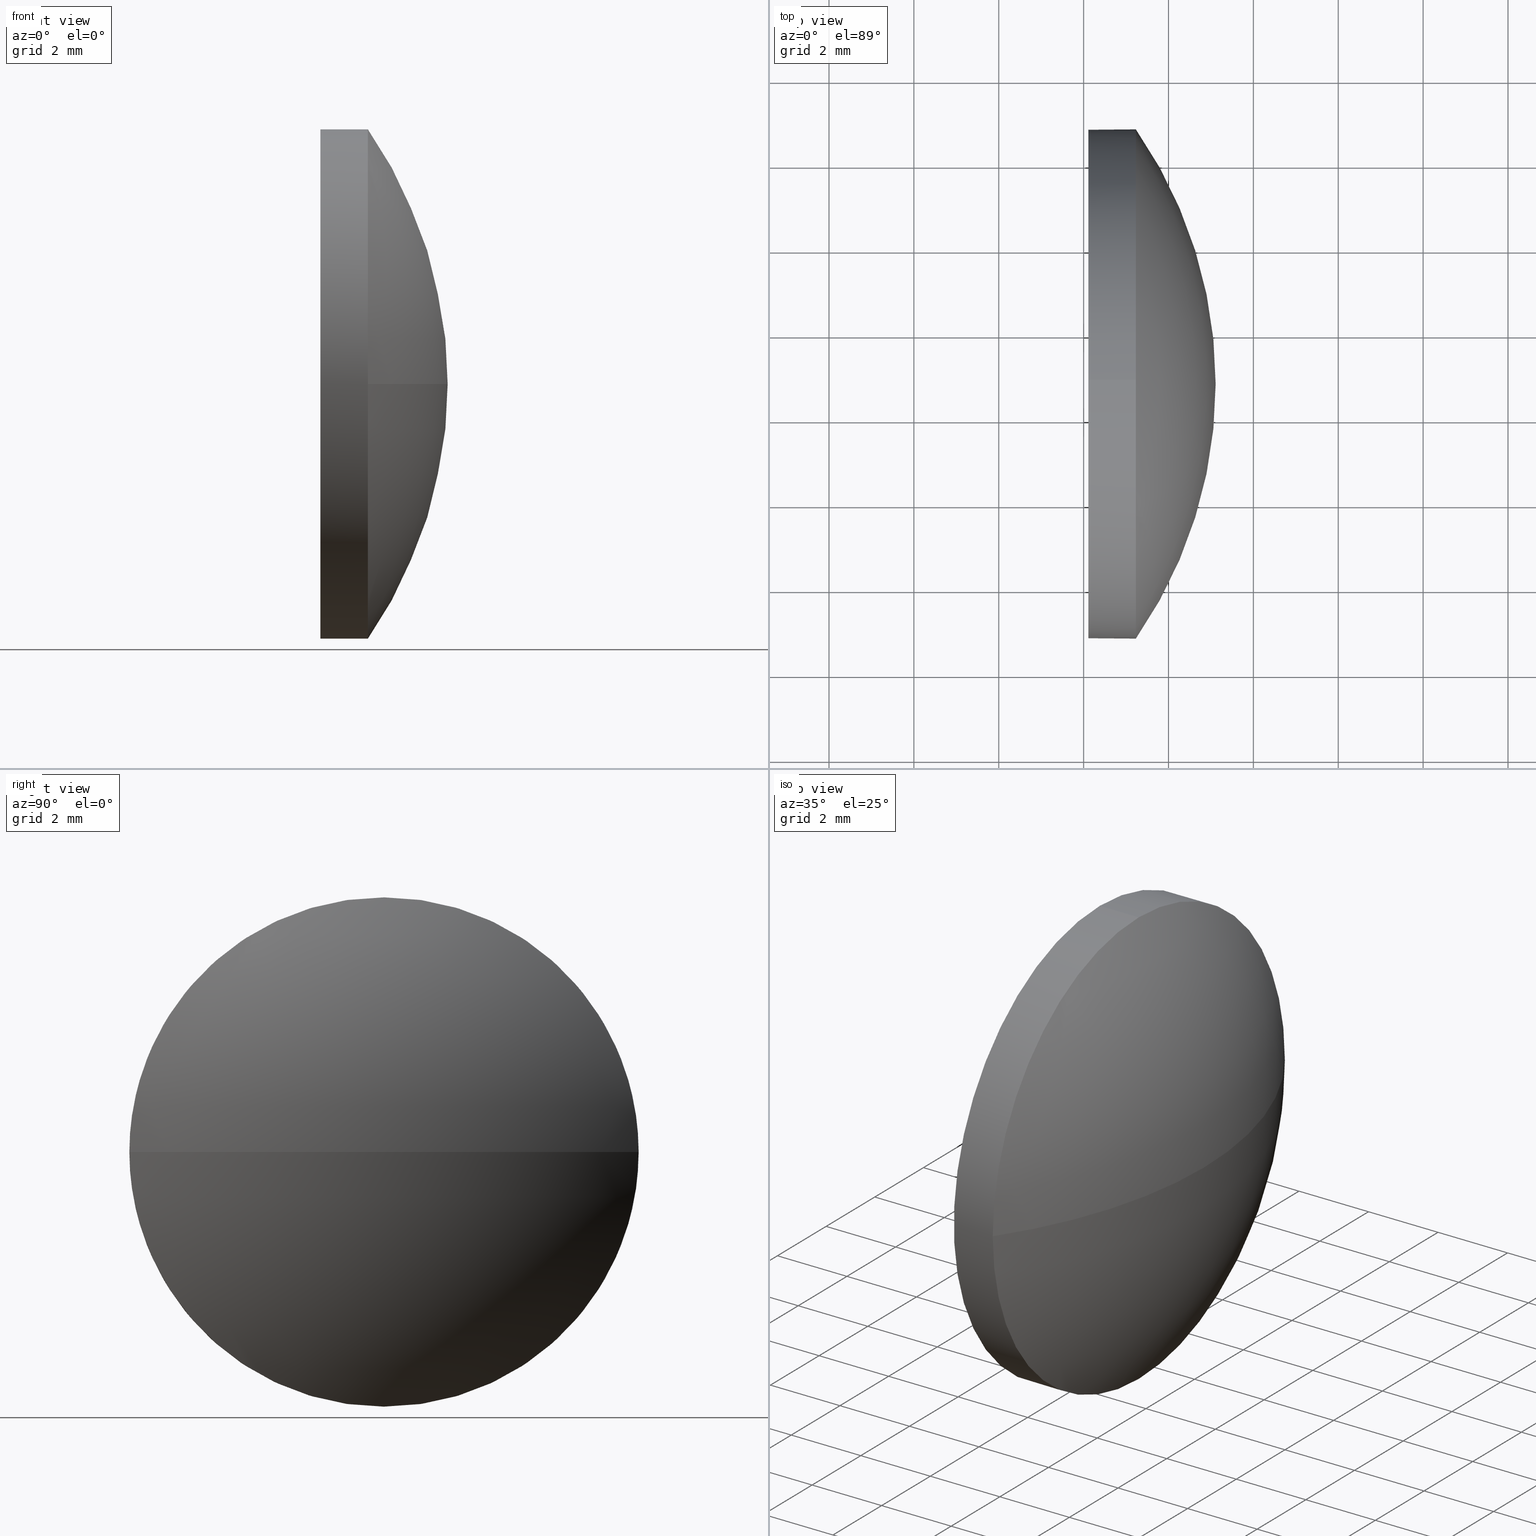
[diagram: canonical four-view strip — front | top / right | iso, engineering-drawing reading convention]
A machine part, canonical four-view strip (front | top / right | iso — engineering-drawing reading convention). The complete STEP part file that produces these views, byte-faithful:
ISO-10303-21;
HEADER;
FILE_DESCRIPTION (( 'STEP AP214' ),
    '1' );
FILE_NAME ('100195.STEP',
    '2019-05-22T03:48:23',
    ( '' ),
    ( '' ),
    'SwSTEP 2.0',
    'SolidWorks 2016',
    '' );
FILE_SCHEMA (( 'AUTOMOTIVE_DESIGN' ));
ENDSEC;

DATA;
#1 = FILL_AREA_STYLE ('',( #19 ) ) ;
#2 = DIRECTION ( 'NONE',  ( 0.0000000000000000000, 0.0000000000000000000, 1.000000000000000000 ) ) ;
#3 = EDGE_LOOP ( 'NONE', ( #133, #54, #10, #145, #49 ) ) ;
#4 = AXIS2_PLACEMENT_3D ( 'NONE', #113, #44, #179 ) ;
#5 = PRODUCT_CONTEXT ( 'NONE', #122, 'mechanical' ) ;
#6 = PRODUCT_DEFINITION_FORMATION_WITH_SPECIFIED_SOURCE ( '�κ�', '', #74, .NOT_KNOWN. ) ;
#7 = FACE_OUTER_BOUND ( 'NONE', #3, .T. ) ;
#8 = PRESENTATION_LAYER_ASSIGNMENT (  '', '', ( #178 ) ) ;
#9 = FACE_OUTER_BOUND ( 'NONE', #52, .T. ) ;
#10 = ORIENTED_EDGE ( 'NONE', *, *, #35, .T. ) ;
#11 = EDGE_CURVE ( 'NONE', #169, #64, #174, .T. ) ;
#12 = ORIENTED_EDGE ( 'NONE', *, *, #148, .T. ) ;
#13 = DIRECTION ( 'NONE',  ( 0.0000000000000000000, 0.0000000000000000000, 1.000000000000000000 ) ) ;
#14 = CARTESIAN_POINT ( 'NONE',  ( 433.2311950534910400, 60.80641332261154000, 0.0000000000000000000 ) ) ;
#15 = DIRECTION ( 'NONE',  ( -0.0000000000000000000, 0.0000000000000000000, -1.000000000000000000 ) ) ;
#16 = CARTESIAN_POINT ( 'NONE',  ( 430.4750955185627400, 54.80641332261154700, 0.0000000000000000000 ) ) ;
#17 = PRODUCT_RELATED_PRODUCT_CATEGORY ( 'part', '', ( #74 ) ) ;
#18 = CIRCLE ( 'NONE', #67, 5.999999999999998200 ) ;
#19 = FILL_AREA_STYLE_COLOUR ( '', #108 ) ;
#20 = CARTESIAN_POINT ( 'NONE',  ( 424.5967269683846400, 54.80641332261151900, 0.0000000000000000000 ) ) ;
#21 = AXIS2_PLACEMENT_3D ( 'NONE', #115, #166, #82 ) ;
#22 = CIRCLE ( 'NONE', #165, 5.999999999999998200 ) ;
#23 = ORIENTED_EDGE ( 'NONE', *, *, #137, .F. ) ;
#24 =( GEOMETRIC_REPRESENTATION_CONTEXT ( 3 ) GLOBAL_UNCERTAINTY_ASSIGNED_CONTEXT ( ( #53 ) ) GLOBAL_UNIT_ASSIGNED_CONTEXT ( ( #89, #100, #120 ) ) REPRESENTATION_CONTEXT ( 'NONE', 'WORKASPACE' ) );
#25 = ORIENTED_EDGE ( 'NONE', *, *, #125, .T. ) ;
#26 = DIRECTION ( 'NONE',  ( 0.0000000000000000000, 0.0000000000000000000, -1.000000000000000000 ) ) ;
#27 = VERTEX_POINT ( 'NONE', #116 ) ;
#28 = AXIS2_PLACEMENT_3D ( 'NONE', #171, #70, #2 ) ;
#29 = DIRECTION ( 'NONE',  ( 0.0000000000000000000, 0.0000000000000000000, 1.000000000000000000 ) ) ;
#30 = DIRECTION ( 'NONE',  ( 0.0000000000000000000, 1.000000000000000000, 0.0000000000000000000 ) ) ;
#31 =( LENGTH_UNIT ( ) NAMED_UNIT ( * ) SI_UNIT ( .MILLI., .METRE. ) );
#32 = APPLICATION_PROTOCOL_DEFINITION ( 'draft international standard', 'automotive_design', 1998, #122 ) ;
#33 = AXIS2_PLACEMENT_3D ( 'NONE', #16, #57, #29 ) ;
#34 = UNCERTAINTY_MEASURE_WITH_UNIT (LENGTH_MEASURE( 1.000000000000000100E-005 ), #157, 'distance_accuracy_value', 'NONE');
#35 = EDGE_CURVE ( 'NONE', #139, #169, #66, .T. ) ;
#36 = LINE ( 'NONE', #130, #172 ) ;
#37 = EDGE_LOOP ( 'NONE', ( #25, #12, #152, #150, #72 ) ) ;
#38 = CIRCLE ( 'NONE', #21, 10.51446808510642100 ) ;
#39 = CARTESIAN_POINT ( 'NONE',  ( 435.1111950534910300, 54.80641332261151900, 0.0000000000000000000 ) ) ;
#40 = VERTEX_POINT ( 'NONE', #39 ) ;
#41 = DIRECTION ( 'NONE',  ( -1.000000000000000000, -0.0000000000000000000, -0.0000000000000000000 ) ) ;
#42 = CARTESIAN_POINT ( 'NONE',  ( 432.1111950534910300, 54.80641332261154700, -5.999999999999998200 ) ) ;
#43 = SPHERICAL_SURFACE ( 'NONE', #167, 10.51446808510642800 ) ;
#44 = DIRECTION ( 'NONE',  ( -1.000000000000000000, -0.0000000000000000000, -0.0000000000000000000 ) ) ;
#45 =( NAMED_UNIT ( * ) PLANE_ANGLE_UNIT ( ) SI_UNIT ( $, .RADIAN. ) );
#46 = MECHANICAL_DESIGN_GEOMETRIC_PRESENTATION_REPRESENTATION (  '', ( #110 ), #24 ) ;
#47 = FACE_OUTER_BOUND ( 'NONE', #59, .T. ) ;
#48 = FILL_AREA_STYLE ('',( #71 ) ) ;
#49 = ORIENTED_EDGE ( 'NONE', *, *, #91, .F. ) ;
#50 = SPHERICAL_SURFACE ( 'NONE', #183, 10.51446808510642800 ) ;
#51 = ORIENTED_EDGE ( 'NONE', *, *, #91, .T. ) ;
#52 = EDGE_LOOP ( 'NONE', ( #147, #51 ) ) ;
#53 = UNCERTAINTY_MEASURE_WITH_UNIT (LENGTH_MEASURE( 1.000000000000000100E-005 ), #89, 'distance_accuracy_value', 'NONE');
#54 = ORIENTED_EDGE ( 'NONE', *, *, #118, .T. ) ;
#55 = EDGE_LOOP ( 'NONE', ( #124, #114, #75, #95 ) ) ;
#56 = SURFACE_SIDE_STYLE ('',( #112 ) ) ;
#57 = DIRECTION ( 'NONE',  ( -1.000000000000000000, -0.0000000000000000000, -0.0000000000000000000 ) ) ;
#58 = CIRCLE ( 'NONE', #28, 5.999999999999998200 ) ;
#59 = EDGE_LOOP ( 'NONE', ( #23, #135, #181, #104 ) ) ;
#60 = DIRECTION ( 'NONE',  ( -1.000000000000000000, -0.0000000000000000000, -0.0000000000000000000 ) ) ;
#61 =( NAMED_UNIT ( * ) SI_UNIT ( $, .STERADIAN. ) SOLID_ANGLE_UNIT ( ) );
#62 = DIRECTION ( 'NONE',  ( 0.0000000000000000000, 0.0000000000000000000, 1.000000000000000000 ) ) ;
#63 = SURFACE_STYLE_FILL_AREA ( #48 ) ;
#64 = VERTEX_POINT ( 'NONE', #14 ) ;
#65 = AXIS2_PLACEMENT_3D ( 'NONE', #119, #69, #81 ) ;
#66 = CIRCLE ( 'NONE', #158, 5.999999999999998200 ) ;
#67 = AXIS2_PLACEMENT_3D ( 'NONE', #154, #155, #141 ) ;
#68 = EDGE_CURVE ( 'NONE', #169, #27, #111, .T. ) ;
#69 = DIRECTION ( 'NONE',  ( -1.000000000000000000, -0.0000000000000000000, -0.0000000000000000000 ) ) ;
#70 = DIRECTION ( 'NONE',  ( -1.000000000000000000, -0.0000000000000000000, -0.0000000000000000000 ) ) ;
#71 = FILL_AREA_STYLE_COLOUR ( '', #164 ) ;
#72 = ORIENTED_EDGE ( 'NONE', *, *, #11, .T. ) ;
#73 = DIRECTION ( 'NONE',  ( -1.000000000000000000, -0.0000000000000000000, -0.0000000000000000000 ) ) ;
#74 = PRODUCT ( '100195', '100195', '', ( #5 ) ) ;
#75 = ORIENTED_EDGE ( 'NONE', *, *, #118, .F. ) ;
#76 = ADVANCED_BREP_SHAPE_REPRESENTATION ( '100195', ( #143, #94 ), #161 ) ;
#77 = AXIS2_PLACEMENT_3D ( 'NONE', #126, #151, #96 ) ;
#78 = PRESENTATION_LAYER_ASSIGNMENT (  '', '', ( #110 ) ) ;
#79 = PRESENTATION_STYLE_ASSIGNMENT (( #90 ) ) ;
#80 = CARTESIAN_POINT ( 'NONE',  ( 432.1111950534910300, 54.80641332261154700, 0.0000000000000000000 ) ) ;
#81 = DIRECTION ( 'NONE',  ( 0.0000000000000000000, 0.0000000000000000000, 1.000000000000000000 ) ) ;
#82 = DIRECTION ( 'NONE',  ( 1.000000000000000000, 0.0000000000000000000, 0.0000000000000000000 ) ) ;
#83 = CARTESIAN_POINT ( 'NONE',  ( 433.2311950534910400, 54.80641332261154700, 0.0000000000000000000 ) ) ;
#84 = DIRECTION ( 'NONE',  ( -0.0000000000000000000, 0.0000000000000000000, -1.000000000000000000 ) ) ;
#85 = DIRECTION ( 'NONE',  ( 0.0000000000000000000, 1.000000000000000000, 0.0000000000000000000 ) ) ;
#86 = SHAPE_DEFINITION_REPRESENTATION ( #107, #76 ) ;
#87 = CARTESIAN_POINT ( 'NONE',  ( 433.2311950534910400, 54.80641332261154700, -5.999999999999998200 ) ) ;
#88 = CLOSED_SHELL ( 'NONE', ( #105, #144, #160, #127, #92 ) ) ;
#89 =( LENGTH_UNIT ( ) NAMED_UNIT ( * ) SI_UNIT ( .MILLI., .METRE. ) );
#90 = SURFACE_STYLE_USAGE ( .BOTH. , #186 ) ;
#91 = EDGE_CURVE ( 'NONE', #109, #27, #138, .T. ) ;
#92 = ADVANCED_FACE ( 'NONE', ( #9 ), #117, .F. ) ;
#93 = APPLICATION_PROTOCOL_DEFINITION ( 'draft international standard', 'automotive_design', 1998, #140 ) ;
#94 = AXIS2_PLACEMENT_3D ( 'NONE', #170, #62, #123 ) ;
#95 = ORIENTED_EDGE ( 'NONE', *, *, #125, .F. ) ;
#96 = DIRECTION ( 'NONE',  ( 0.0000000000000000000, 0.0000000000000000000, 1.000000000000000000 ) ) ;
#97 = AXIS2_PLACEMENT_3D ( 'NONE', #103, #101, #168 ) ;
#98 = CARTESIAN_POINT ( 'NONE',  ( 430.4750955185627400, 54.80641332261154700, 5.999999999999998200 ) ) ;
#99 = FACE_OUTER_BOUND ( 'NONE', #37, .T. ) ;
#100 =( NAMED_UNIT ( * ) PLANE_ANGLE_UNIT ( ) SI_UNIT ( $, .RADIAN. ) );
#101 = DIRECTION ( 'NONE',  ( 0.0000000000000000000, 1.224646799147353200E-016, -1.000000000000000000 ) ) ;
#102 =( GEOMETRIC_REPRESENTATION_CONTEXT ( 3 ) GLOBAL_UNCERTAINTY_ASSIGNED_CONTEXT ( ( #182 ) ) GLOBAL_UNIT_ASSIGNED_CONTEXT ( ( #31, #142, #61 ) ) REPRESENTATION_CONTEXT ( 'NONE', 'WORKASPACE' ) );
#103 = CARTESIAN_POINT ( 'NONE',  ( 424.5967269683846400, 54.80641332261151900, 0.0000000000000000000 ) ) ;
#104 = ORIENTED_EDGE ( 'NONE', *, *, #35, .F. ) ;
#105 = ADVANCED_FACE ( 'NONE', ( #99 ), #163, .T. ) ;
#106 = EDGE_CURVE ( 'NONE', #40, #64, #38, .T. ) ;
#107 = PRODUCT_DEFINITION_SHAPE ( 'NONE', 'NONE',  #175 ) ;
#108 = COLOUR_RGB ( '',1.000000000000000000, 1.000000000000000000, 1.000000000000000000 ) ;
#109 = VERTEX_POINT ( 'NONE', #42 ) ;
#110 = STYLED_ITEM ( 'NONE', ( #79 ), #143 ) ;
#111 = LINE ( 'NONE', #98, #180 ) ;
#112 = SURFACE_STYLE_FILL_AREA ( #1 ) ;
#113 = CARTESIAN_POINT ( 'NONE',  ( 430.4750955185627400, 54.80641332261154700, 0.0000000000000000000 ) ) ;
#114 = ORIENTED_EDGE ( 'NONE', *, *, #137, .T. ) ;
#115 = CARTESIAN_POINT ( 'NONE',  ( 424.5967269683846400, 54.80641332261151900, 0.0000000000000000000 ) ) ;
#116 = CARTESIAN_POINT ( 'NONE',  ( 432.1111950534910300, 54.80641332261154700, 5.999999999999998200 ) ) ;
#117 = PLANE ( 'NONE',  #146 ) ;
#118 = EDGE_CURVE ( 'NONE', #177, #139, #58, .T. ) ;
#119 = CARTESIAN_POINT ( 'NONE',  ( 432.1111950534910300, 54.80641332261154700, 0.0000000000000000000 ) ) ;
#120 =( NAMED_UNIT ( * ) SI_UNIT ( $, .STERADIAN. ) SOLID_ANGLE_UNIT ( ) );
#121 = CARTESIAN_POINT ( 'NONE',  ( 424.5967269683846400, 54.80641332261151900, 0.0000000000000000000 ) ) ;
#122 = APPLICATION_CONTEXT ( 'automotive_design' ) ;
#123 = DIRECTION ( 'NONE',  ( 1.000000000000000000, 0.0000000000000000000, 0.0000000000000000000 ) ) ;
#124 = ORIENTED_EDGE ( 'NONE', *, *, #106, .F. ) ;
#125 = EDGE_CURVE ( 'NONE', #64, #177, #22, .T. ) ;
#126 = CARTESIAN_POINT ( 'NONE',  ( 433.2311950534910400, 54.80641332261154700, 0.0000000000000000000 ) ) ;
#127 = ADVANCED_FACE ( 'NONE', ( #7 ), #176, .T. ) ;
#128 =( NAMED_UNIT ( * ) SI_UNIT ( $, .STERADIAN. ) SOLID_ANGLE_UNIT ( ) );
#129 = CARTESIAN_POINT ( 'NONE',  ( 433.2311950534910400, 54.80641332261154700, 5.999999999999998200 ) ) ;
#130 = CARTESIAN_POINT ( 'NONE',  ( 430.4750955185627400, 54.80641332261154700, -5.999999999999998200 ) ) ;
#131 = CARTESIAN_POINT ( 'NONE',  ( 433.2311950534910400, 48.80641332261152600, -7.347880794884107900E-016 ) ) ;
#132 = CARTESIAN_POINT ( 'NONE',  ( 433.2311950534910400, 54.80641332261154700, 0.0000000000000000000 ) ) ;
#133 = ORIENTED_EDGE ( 'NONE', *, *, #148, .F. ) ;
#134 = EDGE_CURVE ( 'NONE', #27, #109, #18, .T. ) ;
#135 = ORIENTED_EDGE ( 'NONE', *, *, #106, .T. ) ;
#136 = PRODUCT_DEFINITION_CONTEXT ( 'detailed design', #140, 'design' ) ;
#137 = EDGE_CURVE ( 'NONE', #40, #139, #173, .T. ) ;
#138 = CIRCLE ( 'NONE', #65, 5.999999999999998200 ) ;
#139 = VERTEX_POINT ( 'NONE', #131 ) ;
#140 = APPLICATION_CONTEXT ( 'automotive_design' ) ;
#141 = DIRECTION ( 'NONE',  ( 0.0000000000000000000, 0.0000000000000000000, 1.000000000000000000 ) ) ;
#142 =( NAMED_UNIT ( * ) PLANE_ANGLE_UNIT ( ) SI_UNIT ( $, .RADIAN. ) );
#143 = MANIFOLD_SOLID_BREP ( '��ת1', #88 ) ;
#144 = ADVANCED_FACE ( 'NONE', ( #156 ), #43, .T. ) ;
#145 = ORIENTED_EDGE ( 'NONE', *, *, #68, .T. ) ;
#146 = AXIS2_PLACEMENT_3D ( 'NONE', #80, #185, #26 ) ;
#147 = ORIENTED_EDGE ( 'NONE', *, *, #134, .T. ) ;
#148 = EDGE_CURVE ( 'NONE', #177, #109, #36, .T. ) ;
#149 = MECHANICAL_DESIGN_GEOMETRIC_PRESENTATION_REPRESENTATION (  '', ( #178 ), #102 ) ;
#150 = ORIENTED_EDGE ( 'NONE', *, *, #68, .F. ) ;
#151 = DIRECTION ( 'NONE',  ( -1.000000000000000000, -0.0000000000000000000, -0.0000000000000000000 ) ) ;
#152 = ORIENTED_EDGE ( 'NONE', *, *, #134, .F. ) ;
#153 = SURFACE_STYLE_USAGE ( .BOTH. , #56 ) ;
#154 = CARTESIAN_POINT ( 'NONE',  ( 432.1111950534910300, 54.80641332261154700, 0.0000000000000000000 ) ) ;
#155 = DIRECTION ( 'NONE',  ( -1.000000000000000000, -0.0000000000000000000, -0.0000000000000000000 ) ) ;
#156 = FACE_OUTER_BOUND ( 'NONE', #55, .T. ) ;
#157 =( LENGTH_UNIT ( ) NAMED_UNIT ( * ) SI_UNIT ( .MILLI., .METRE. ) );
#158 = AXIS2_PLACEMENT_3D ( 'NONE', #83, #184, #13 ) ;
#159 = DIRECTION ( 'NONE',  ( 0.0000000000000000000, 0.0000000000000000000, 1.000000000000000000 ) ) ;
#160 = ADVANCED_FACE ( 'NONE', ( #47 ), #50, .T. ) ;
#161 =( GEOMETRIC_REPRESENTATION_CONTEXT ( 3 ) GLOBAL_UNCERTAINTY_ASSIGNED_CONTEXT ( ( #34 ) ) GLOBAL_UNIT_ASSIGNED_CONTEXT ( ( #157, #45, #128 ) ) REPRESENTATION_CONTEXT ( 'NONE', 'WORKASPACE' ) );
#162 = PRESENTATION_STYLE_ASSIGNMENT (( #153 ) ) ;
#163 = CYLINDRICAL_SURFACE ( 'NONE', #4, 5.999999999999998200 ) ;
#164 = COLOUR_RGB ( '',1.000000000000000000, 1.000000000000000000, 1.000000000000000000 ) ;
#165 = AXIS2_PLACEMENT_3D ( 'NONE', #132, #73, #159 ) ;
#166 = DIRECTION ( 'NONE',  ( -0.0000000000000000000, 0.0000000000000000000, 1.000000000000000000 ) ) ;
#167 = AXIS2_PLACEMENT_3D ( 'NONE', #20, #84, #30 ) ;
#168 = DIRECTION ( 'NONE',  ( 0.0000000000000000000, 1.000000000000000000, 1.224646799147353900E-016 ) ) ;
#169 = VERTEX_POINT ( 'NONE', #129 ) ;
#170 = CARTESIAN_POINT ( 'NONE',  ( 0.0000000000000000000, 0.0000000000000000000, 0.0000000000000000000 ) ) ;
#171 = CARTESIAN_POINT ( 'NONE',  ( 433.2311950534910400, 54.80641332261154700, 0.0000000000000000000 ) ) ;
#172 = VECTOR ( 'NONE', #60, 1000.000000000000000 ) ;
#173 = CIRCLE ( 'NONE', #97, 10.51446808510642100 ) ;
#174 = CIRCLE ( 'NONE', #77, 5.999999999999998200 ) ;
#175 = PRODUCT_DEFINITION ( 'δ֪', '', #6, #136 ) ;
#176 = CYLINDRICAL_SURFACE ( 'NONE', #33, 5.999999999999998200 ) ;
#177 = VERTEX_POINT ( 'NONE', #87 ) ;
#178 = STYLED_ITEM ( 'NONE', ( #162 ), #76 ) ;
#179 = DIRECTION ( 'NONE',  ( 0.0000000000000000000, 0.0000000000000000000, 1.000000000000000000 ) ) ;
#180 = VECTOR ( 'NONE', #41, 1000.000000000000000 ) ;
#181 = ORIENTED_EDGE ( 'NONE', *, *, #11, .F. ) ;
#182 = UNCERTAINTY_MEASURE_WITH_UNIT (LENGTH_MEASURE( 1.000000000000000100E-005 ), #31, 'distance_accuracy_value', 'NONE');
#183 = AXIS2_PLACEMENT_3D ( 'NONE', #121, #15, #85 ) ;
#184 = DIRECTION ( 'NONE',  ( -1.000000000000000000, -0.0000000000000000000, -0.0000000000000000000 ) ) ;
#185 = DIRECTION ( 'NONE',  ( 1.000000000000000000, 0.0000000000000000000, 0.0000000000000000000 ) ) ;
#186 = SURFACE_SIDE_STYLE ('',( #63 ) ) ;
ENDSEC;
END-ISO-10303-21;
